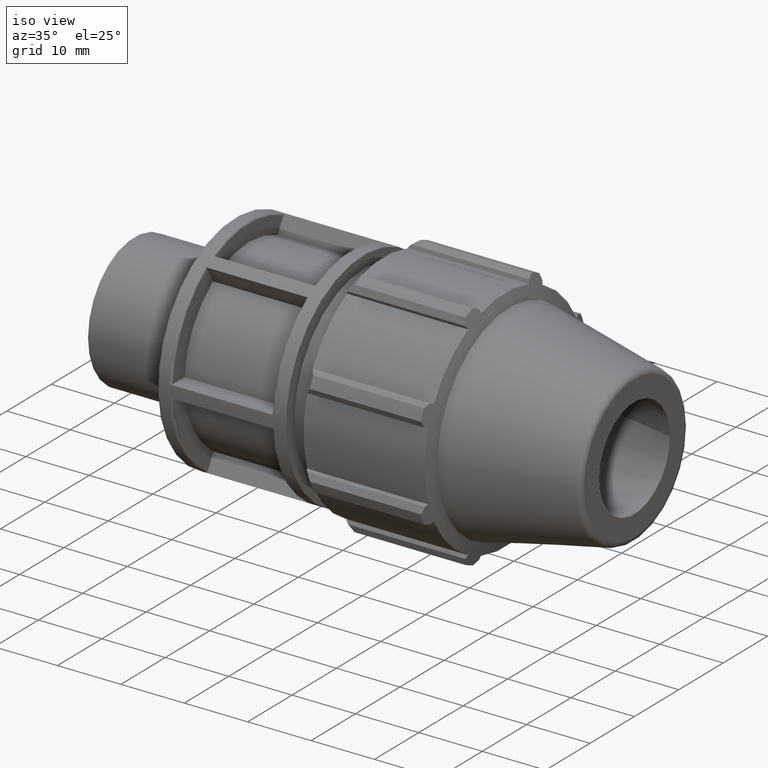
[diagram: clean part render]
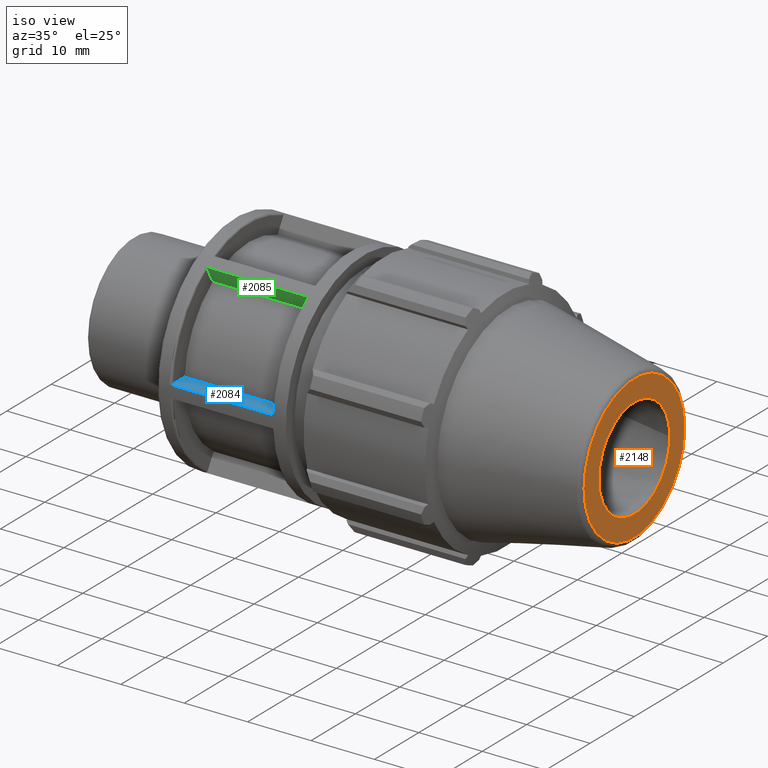
[diagram: same view with three faces highlighted in distinct colors, each labeled with its STEP entity id]
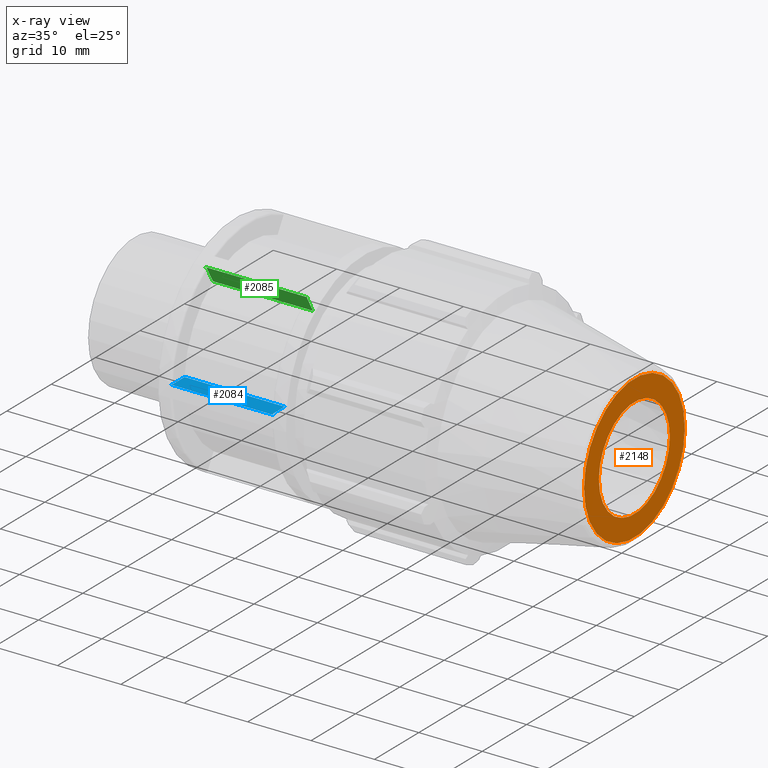
[diagram: x-ray of the same camera — body ghosted, the three highlighted faces saturated]
A machine part, iso view with three faces highlighted in distinct colors.
The next image is the same camera in x-ray (body ghosted, the three faces saturated) — at least one of them is partly hidden behind the body in this view.
Their STEP definitions:

[orange] entity #2148 — the highlighted planar face has unit normal (1, 0, 0).
#455=PLANE('',#2358);
#480=FACE_BOUND('',#716,.T.);
#578=FACE_OUTER_BOUND('',#715,.T.);
#715=EDGE_LOOP('',(#1832));
#716=EDGE_LOOP('',(#1833));
#834=CIRCLE('',#2356,11.352172773444);
#835=CIRCLE('',#2359,8.00000000000001);
#1036=VERTEX_POINT('',#3812);
#1037=VERTEX_POINT('',#3816);
#1328=EDGE_CURVE('',#1036,#1036,#834,.T.);
#1329=EDGE_CURVE('',#1037,#1037,#835,.T.);
#1832=ORIENTED_EDGE('',*,*,#1328,.F.);
#1833=ORIENTED_EDGE('',*,*,#1329,.F.);
#2148=ADVANCED_FACE('',(#578,#480),#455,.T.);
#2356=AXIS2_PLACEMENT_3D('',#3813,#2893,#2894);
#2358=AXIS2_PLACEMENT_3D('',#3815,#2897,#2898);
#2359=AXIS2_PLACEMENT_3D('',#3817,#2899,#2900);
#2893=DIRECTION('center_axis',(-1.,0.,0.));
#2894=DIRECTION('ref_axis',(0.,-1.,1.83697019872103E-16));
#2897=DIRECTION('center_axis',(1.,0.,0.));
#2898=DIRECTION('ref_axis',(0.,0.,-1.));
#2899=DIRECTION('center_axis',(1.,0.,0.));
#2900=DIRECTION('ref_axis',(0.,0.,-1.));
#3812=CARTESIAN_POINT('',(79.,11.352172773444,-3.47560051259148E-15));
#3813=CARTESIAN_POINT('Origin',(79.,0.,0.));
#3815=CARTESIAN_POINT('Origin',(79.,8.00000000000001,0.));
#3816=CARTESIAN_POINT('',(79.,8.00000000000001,0.));
#3817=CARTESIAN_POINT('Origin',(79.,0.,0.));

[blue] entity #2084 — the highlighted planar face has unit normal (0, -0, 1).
#64=LINE('',#3018,#208);
#77=LINE('',#3281,#221);
#92=LINE('',#3368,#236);
#93=LINE('',#3369,#237);
#208=VECTOR('',#2427,16.44);
#221=VECTOR('',#2506,2.60904113914616);
#236=VECTOR('',#2555,15.8);
#237=VECTOR('',#2556,2.60904113914617);
#353=B_SPLINE_CURVE_WITH_KNOTS('',3,(#3103,#3104,#3105,#3106,#3107,#3108,
#3109,#3110,#3111,#3112),.UNSPECIFIED.,.F.,.F.,(4,2,2,2,4),(0.142266509943648,
0.154134651594973,0.165994648041684,0.177845173008987,0.18968802231501),
 .UNSPECIFIED.);
#365=B_SPLINE_CURVE_WITH_KNOTS('',3,(#3266,#3267,#3268,#3269,#3270,#3271,
#3272,#3273,#3274,#3275),.UNSPECIFIED.,.F.,.F.,(4,2,2,2,4),(0.,0.0118428493060232,
0.023693374273326,0.0355533707200369,0.047421512371362),.UNSPECIFIED.);
#410=PLANE('',#2240);
#514=FACE_OUTER_BOUND('',#643,.T.);
#643=EDGE_LOOP('',(#1472,#1473,#1474,#1475,#1476,#1477));
#857=VERTEX_POINT('',#3016);
#858=VERTEX_POINT('',#3017);
#875=VERTEX_POINT('',#3102);
#893=VERTEX_POINT('',#3264);
#895=VERTEX_POINT('',#3279);
#910=VERTEX_POINT('',#3367);
#1060=EDGE_CURVE('',#857,#858,#64,.T.);
#1080=EDGE_CURVE('',#857,#875,#353,.F.);
#1108=EDGE_CURVE('',#893,#858,#365,.F.);
#1111=EDGE_CURVE('',#895,#893,#77,.T.);
#1135=EDGE_CURVE('',#910,#895,#92,.T.);
#1136=EDGE_CURVE('',#875,#910,#93,.T.);
#1472=ORIENTED_EDGE('',*,*,#1060,.T.);
#1473=ORIENTED_EDGE('',*,*,#1108,.F.);
#1474=ORIENTED_EDGE('',*,*,#1111,.F.);
#1475=ORIENTED_EDGE('',*,*,#1135,.F.);
#1476=ORIENTED_EDGE('',*,*,#1136,.F.);
#1477=ORIENTED_EDGE('',*,*,#1080,.F.);
#2084=ADVANCED_FACE('',(#514),#410,.T.);
#2240=AXIS2_PLACEMENT_3D('',#3366,#2553,#2554);
#2427=DIRECTION('',(1.,0.,0.));
#2506=DIRECTION('',(0.,-1.,-2.22044604925031E-16));
#2553=DIRECTION('center_axis',(0.,-2.22044604925031E-16,1.));
#2554=DIRECTION('ref_axis',(0.,1.,2.22044604925031E-16));
#2555=DIRECTION('',(1.,0.,0.));
#2556=DIRECTION('',(0.,1.,2.22044604925031E-16));
#3016=CARTESIAN_POINT('',(17.9371428571429,-17.5277640046092,0.88316985836587));
#3017=CARTESIAN_POINT('',(34.3771428571429,-17.5277640046092,0.88316985836587));
#3018=CARTESIAN_POINT('',(17.1285714285714,-17.5277640046092,0.883169858365871));
#3102=CARTESIAN_POINT('',(18.2571428571429,-17.2073504933582,0.883169858365871));
#3103=CARTESIAN_POINT('Ctrl Pts',(18.2571428571429,-17.2073504933582,0.883169858365871));
#3104=CARTESIAN_POINT('Ctrl Pts',(18.2571428571429,-17.2469109655293,0.883169858365871));
#3105=CARTESIAN_POINT('Ctrl Pts',(18.2478901422092,-17.2934730944159,0.883169858365871));
#3106=CARTESIAN_POINT('Ctrl Pts',(18.2176416930926,-17.3665542788725,0.883169858365871));
#3107=CARTESIAN_POINT('Ctrl Pts',(18.1913030994729,-17.4060109733311,0.883169858365871));
#3108=CARTESIAN_POINT('Ctrl Pts',(18.1354385063322,-17.4619188416616,0.883169858365871));
#3109=CARTESIAN_POINT('Ctrl Pts',(18.0960367287353,-17.4882714315574,0.883169858365871));
#3110=CARTESIAN_POINT('Ctrl Pts',(18.0230785408447,-17.5185140134266,0.883169858365871));
#3111=CARTESIAN_POINT('Ctrl Pts',(17.9766190214963,-17.5277640046092,0.883169858365871));
#3112=CARTESIAN_POINT('Ctrl Pts',(17.9371428571429,-17.5277640046092,0.883169858365871));
#3264=CARTESIAN_POINT('',(34.0571428571429,-17.2073504933582,0.883169858365871));
#3266=CARTESIAN_POINT('Ctrl Pts',(34.3771428571429,-17.5277640046092,0.883169858365871));
#3267=CARTESIAN_POINT('Ctrl Pts',(34.3376666927894,-17.5277640046092,0.883169858365871));
#3268=CARTESIAN_POINT('Ctrl Pts',(34.291207173441,-17.5185140134266,0.883169858365871));
#3269=CARTESIAN_POINT('Ctrl Pts',(34.2182489855504,-17.4882714315574,0.883169858365871));
#3270=CARTESIAN_POINT('Ctrl Pts',(34.1788472079535,-17.4619188416616,0.883169858365871));
#3271=CARTESIAN_POINT('Ctrl Pts',(34.1229826148128,-17.4060109733311,0.883169858365871));
#3272=CARTESIAN_POINT('Ctrl Pts',(34.0966440211931,-17.3665542788725,0.883169858365871));
#3273=CARTESIAN_POINT('Ctrl Pts',(34.0663955720765,-17.2934730944159,0.883169858365871));
#3274=CARTESIAN_POINT('Ctrl Pts',(34.0571428571429,-17.2469109655293,0.883169858365871));
#3275=CARTESIAN_POINT('Ctrl Pts',(34.0571428571429,-17.2073504933582,0.883169858365871));
#3279=CARTESIAN_POINT('',(34.0571428571429,-14.598309354212,0.883169858365872));
#3281=CARTESIAN_POINT('',(34.0571428571429,0.0111179976953978,0.883169858365875));
#3366=CARTESIAN_POINT('Origin',(36.3142857142857,-17.5277640046092,0.883169858365871));
#3367=CARTESIAN_POINT('',(18.2571428571429,-14.598309354212,0.883169858365872));
#3368=CARTESIAN_POINT('',(26.1571428571429,-14.598309354212,0.883169858365872));
#3369=CARTESIAN_POINT('',(18.2571428571429,-1.4513820023046,0.883169858365874));

[green] entity #2085 — the highlighted planar face has unit normal (0, -0.866, -0.5).
#65=LINE('',#3022,#209);
#76=LINE('',#3278,#220);
#94=LINE('',#3372,#238);
#95=LINE('',#3373,#239);
#209=VECTOR('',#2430,16.44);
#220=VECTOR('',#2503,2.61090302528976);
#238=VECTOR('',#2559,2.61090302528976);
#239=VECTOR('',#2560,15.8);
#352=B_SPLINE_CURVE_WITH_KNOTS('',3,(#3092,#3093,#3094,#3095,#3096,#3097,
#3098,#3099,#3100,#3101),.UNSPECIFIED.,.F.,.F.,(4,2,2,2,4),(0.,0.0118406177038035,
0.0236924423676917,0.0355580996589377,0.0474356561106793),.UNSPECIFIED.);
#364=B_SPLINE_CURVE_WITH_KNOTS('',3,(#3254,#3255,#3256,#3257,#3258,#3259,
#3260,#3261,#3262,#3263),.UNSPECIFIED.,.F.,.F.,(4,2,2,2,4),(0.142309852922416,
0.154187409374157,0.166053066665404,0.177904891329292,0.189745509033096),
 .UNSPECIFIED.);
#411=PLANE('',#2241);
#515=FACE_OUTER_BOUND('',#644,.T.);
#644=EDGE_LOOP('',(#1478,#1479,#1480,#1481,#1482,#1483));
#859=VERTEX_POINT('',#3019);
#860=VERTEX_POINT('',#3021);
#874=VERTEX_POINT('',#3091);
#892=VERTEX_POINT('',#3253);
#894=VERTEX_POINT('',#3277);
#911=VERTEX_POINT('',#3371);
#1062=EDGE_CURVE('',#860,#859,#65,.T.);
#1079=EDGE_CURVE('',#874,#859,#352,.F.);
#1106=EDGE_CURVE('',#860,#892,#364,.F.);
#1109=EDGE_CURVE('',#892,#894,#76,.T.);
#1137=EDGE_CURVE('',#911,#874,#94,.T.);
#1138=EDGE_CURVE('',#894,#911,#95,.T.);
#1478=ORIENTED_EDGE('',*,*,#1137,.F.);
#1479=ORIENTED_EDGE('',*,*,#1138,.F.);
#1480=ORIENTED_EDGE('',*,*,#1109,.F.);
#1481=ORIENTED_EDGE('',*,*,#1106,.F.);
#1482=ORIENTED_EDGE('',*,*,#1062,.T.);
#1483=ORIENTED_EDGE('',*,*,#1079,.F.);
#2085=ADVANCED_FACE('',(#515),#411,.T.);
#2241=AXIS2_PLACEMENT_3D('',#3370,#2557,#2558);
#2430=DIRECTION('',(-1.,0.,0.));
#2503=DIRECTION('',(0.,0.5,-0.866025403784439));
#2557=DIRECTION('center_axis',(0.,-0.866025403784439,-0.5));
#2558=DIRECTION('ref_axis',(0.,-0.5,0.866025403784439));
#2559=DIRECTION('',(0.,-0.5,0.866025403784439));
#2560=DIRECTION('',(-1.,0.,0.));
#3019=CARTESIAN_POINT('',(17.9371428571429,-9.68267437033908,14.637223679304));
#3021=CARTESIAN_POINT('',(34.3771428571429,-9.68267437033908,14.637223679304));
#3022=CARTESIAN_POINT('',(17.1285714285714,-9.68267437033909,14.637223679304));
#3091=CARTESIAN_POINT('',(18.2571428571429,-9.52237241246732,14.3595725437174));
#3092=CARTESIAN_POINT('Ctrl Pts',(17.9371428571429,-9.68267437033909,14.637223679304));
#3093=CARTESIAN_POINT('Ctrl Pts',(17.9766115828222,-9.68267437033909,14.637223679304));
#3094=CARTESIAN_POINT('Ctrl Pts',(18.0230615879543,-9.67804833896901,14.6292111579337));
#3095=CARTESIAN_POINT('Ctrl Pts',(18.0960132741438,-9.66292326240941,14.6030137568641));
#3096=CARTESIAN_POINT('Ctrl Pts',(18.1354140197024,-9.64974152110518,14.5801823111929));
#3097=CARTESIAN_POINT('Ctrl Pts',(18.1912850515715,-9.62177440489398,14.5317418449739));
#3098=CARTESIAN_POINT('Ctrl Pts',(18.2176280936894,-9.60203393061378,14.4975503405551));
#3099=CARTESIAN_POINT('Ctrl Pts',(18.2478868164714,-9.5654682715784,14.4342167612936));
#3100=CARTESIAN_POINT('Ctrl Pts',(18.2571428571429,-9.54216833988688,14.393860095791));
#3101=CARTESIAN_POINT('Ctrl Pts',(18.2571428571429,-9.52237241246731,14.3595725437174));
#3253=CARTESIAN_POINT('',(34.0571428571429,-9.52237241246732,14.3595725437174));
#3254=CARTESIAN_POINT('Ctrl Pts',(34.0571428571429,-9.52237241246731,14.3595725437174));
#3255=CARTESIAN_POINT('Ctrl Pts',(34.0571428571429,-9.54216833988688,14.393860095791));
#3256=CARTESIAN_POINT('Ctrl Pts',(34.0663988978143,-9.5654682715784,14.4342167612936));
#3257=CARTESIAN_POINT('Ctrl Pts',(34.0966576205963,-9.60203393061378,14.4975503405551));
#3258=CARTESIAN_POINT('Ctrl Pts',(34.1230006627142,-9.62177440489398,14.5317418449739));
#3259=CARTESIAN_POINT('Ctrl Pts',(34.1788716945833,-9.64974152110518,14.5801823111929));
#3260=CARTESIAN_POINT('Ctrl Pts',(34.2182724401419,-9.66292326240941,14.6030137568641));
#3261=CARTESIAN_POINT('Ctrl Pts',(34.2912241263314,-9.67804833896901,14.6292111579337));
#3262=CARTESIAN_POINT('Ctrl Pts',(34.3376741314635,-9.68267437033909,14.637223679304));
#3263=CARTESIAN_POINT('Ctrl Pts',(34.3771428571429,-9.68267437033909,14.637223679304));
#3277=CARTESIAN_POINT('',(34.0571428571429,-8.21692089982244,12.0984641969988));
#3278=CARTESIAN_POINT('',(34.0571428571429,-1.32976379169131,0.169558166006517));
#3370=CARTESIAN_POINT('Origin',(36.3142857142857,-6.1231255792045,8.47190432103855));
#3371=CARTESIAN_POINT('',(18.2571428571429,-8.21692089982243,12.0984641969988));
#3372=CARTESIAN_POINT('',(18.2571428571429,-1.6953887916913,0.802839242523889));
#3373=CARTESIAN_POINT('',(26.1571428571429,-8.21692089982244,12.0984641969988));